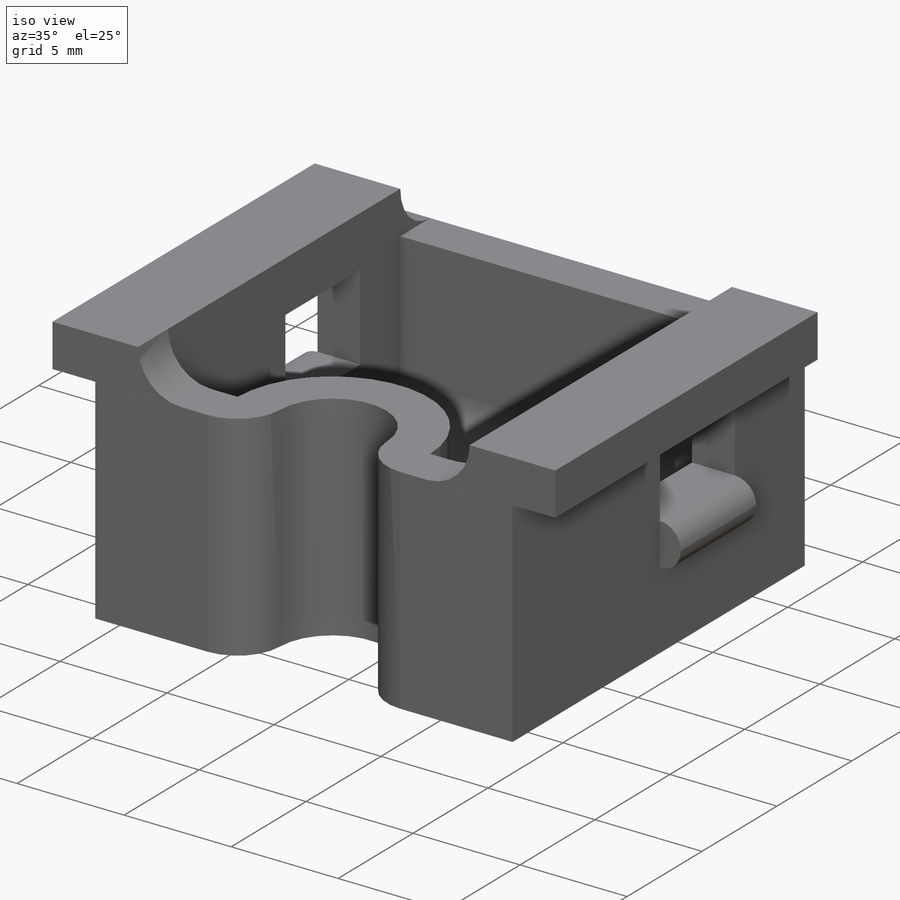
[diagram: iso view]
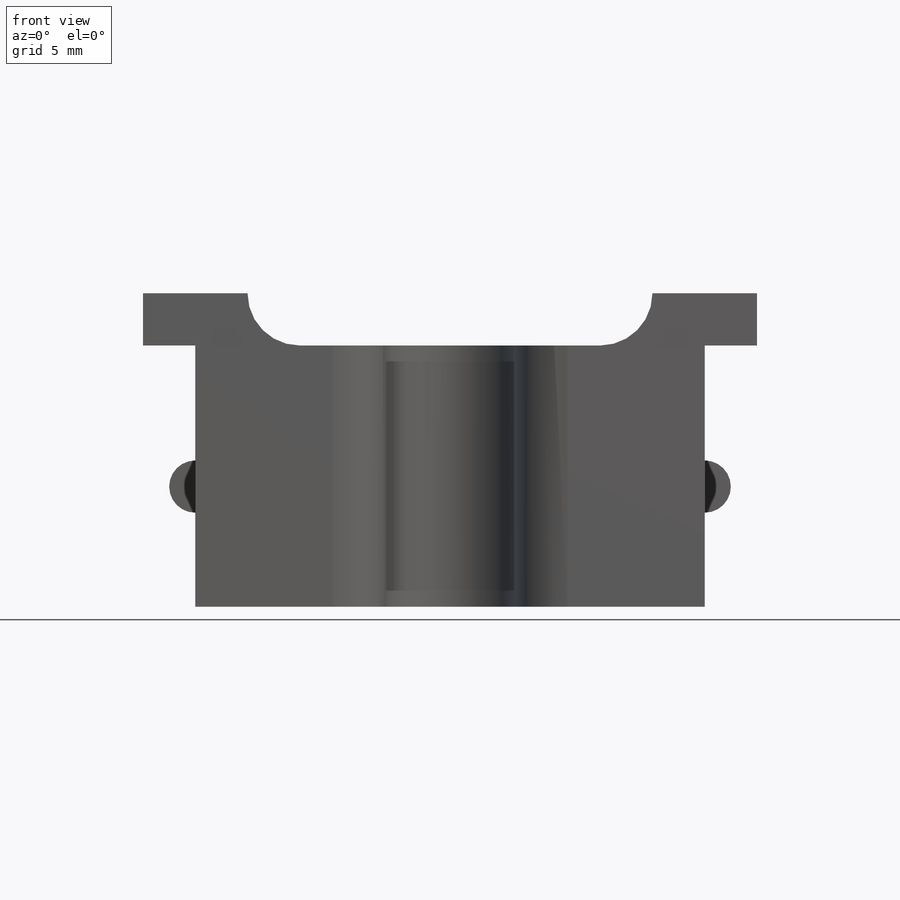
[diagram: front view]
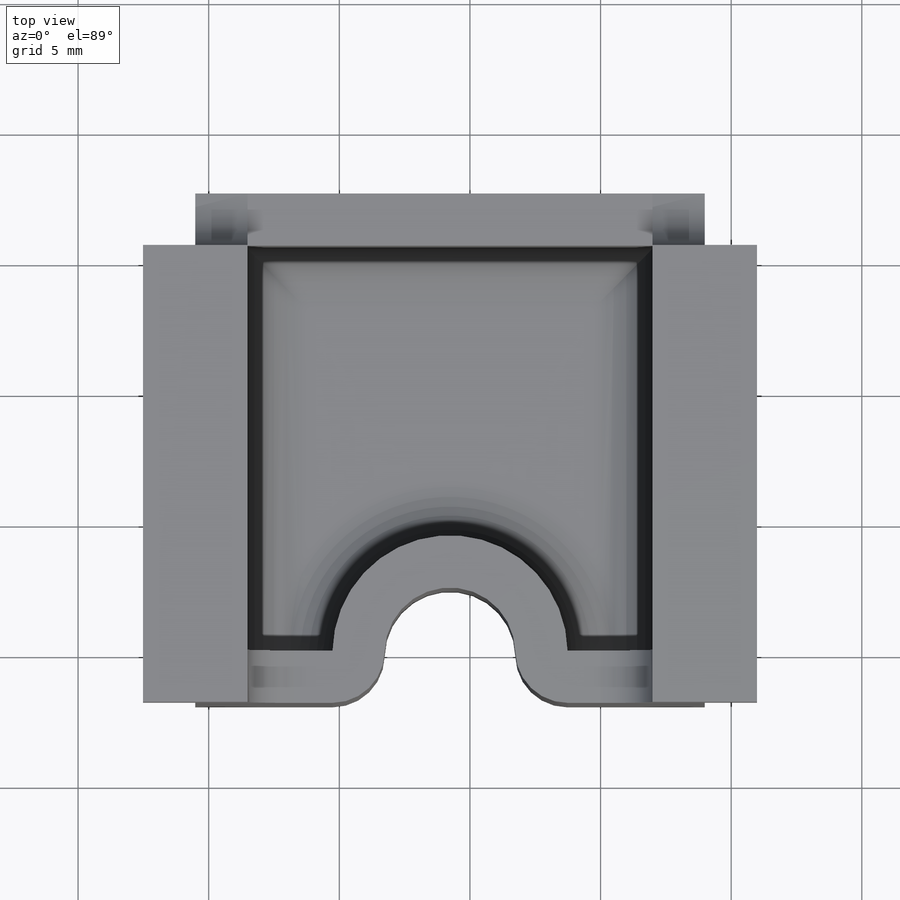
[diagram: top view]
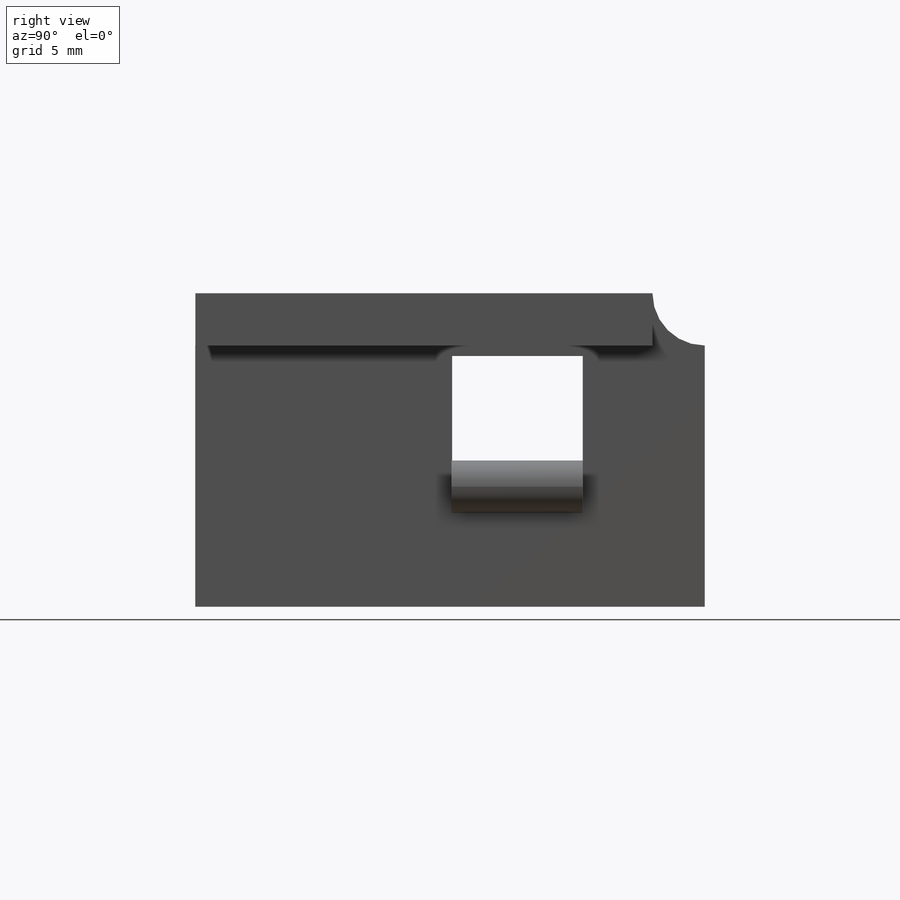
[diagram: right view]
SOLIDWORKS PART (.sldprt)
format: sldprt  version: not decoded by parser v0  size: 315,904 bytes
history: native  units: mm
features: sketch x5, fillet x5, extrude x3, cut_extrude x2, material x1, shell x1 (+13 scaffold rows collapsed)
feature tree (30):
  scaffold x13  (default folders/planes/origin — collapsed)
  material  "Material <not specified>"
  sketch  "Sketch1"  dims[D1=19.5mm D2=19.5mm]
  extrude  "Boss-Extrude1"  Depth=10mm
  sketch  "Sketch2"  dims[D1=4.5mm]
  cut_extrude  "Cut-Extrude1"  Depth=10mm
  shell  "Shell1"  Thickness=2mm
  fillet  "Fillet1"  Radius=2mm
  sketch  "Sketch5"  dims[D1=6.0mm D2=5.0mm]
  cut_extrude  "Cut-Extrude4"  Depth=22mm
  sketch  "Sketch7"  dims[D1=3.0mm D2=3.0mm]
  extrude  "Boss-Extrude4"  Depth=2mm
  fillet  "Fillet6"  Radius=1mm
  sketch  "Sketch8"  dims[D1=4.0mm D2=4.0mm]
  extrude  "Boss-Extrude5"  Depth=2mm
  fillet  "Fillet7"  Radius=2mm
  fillet  "Fillet8"  Radius=2mm
  fillet  "Fillet9"  Radius=2mm
decode coverage: 16 of 16 modeling features carry decoded parameters
note: suppression state not decoded; provenance and decode notes live in map.json
